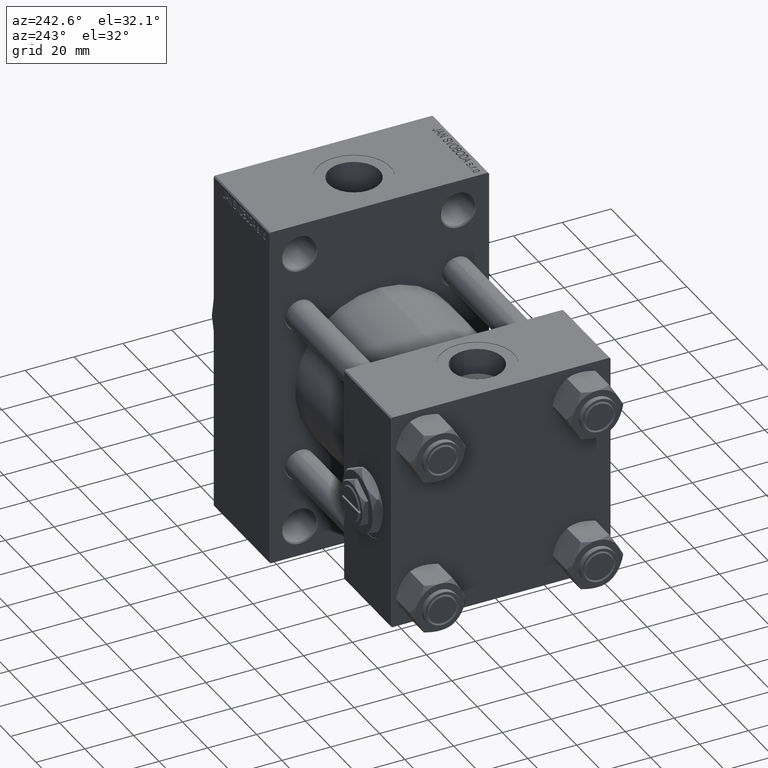
[diagram: clean part render]
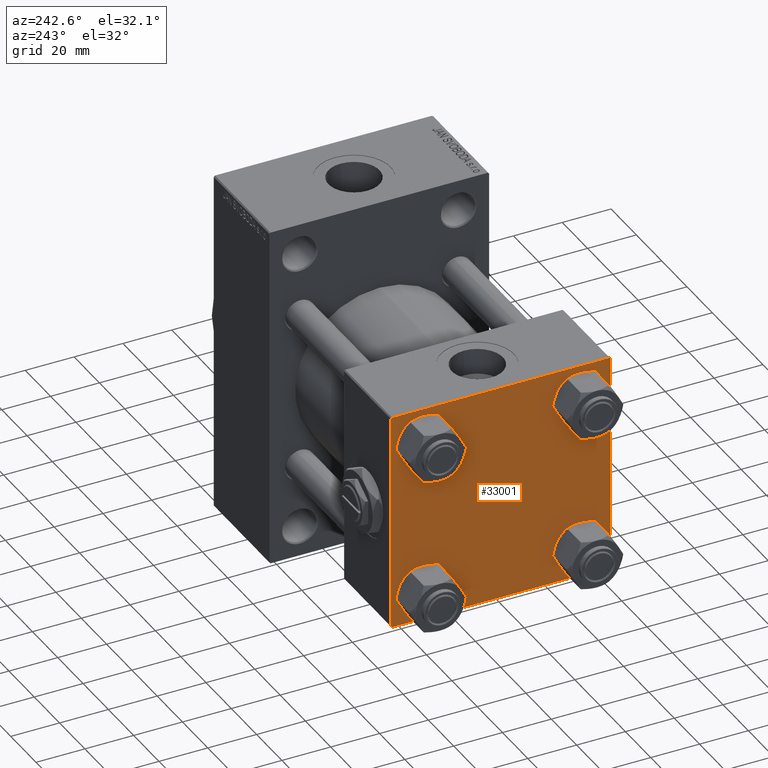
[diagram: same view with one face highlighted and labeled with its STEP entity id]
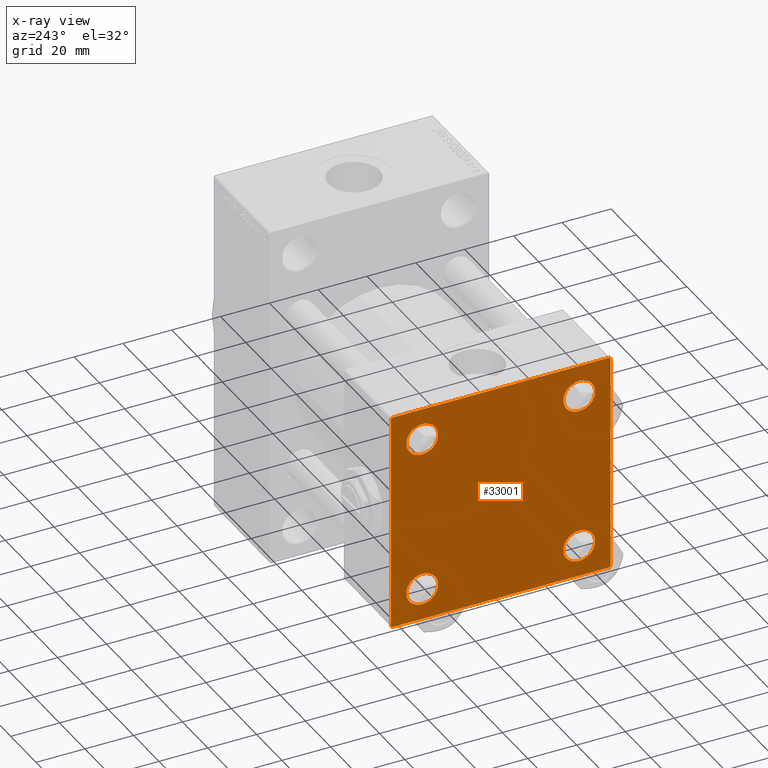
[diagram: x-ray of the same camera — body ghosted, the highlighted face saturated]
A machine part, auxiliary view. The second image highlights one B-rep face of the part: STEP entity #33001.
The next image is the same camera in x-ray: the body ghosted, the highlighted face saturated — about 0% of this face is hidden behind the body in this view.
In plain terms, the highlighted planar face has unit normal (-1, 0, 0).
Its self-contained STEP definition (entity closure, byte-faithful):
#11 = CARTESIAN_POINT ( 'NONE',  ( 0.000000000000000000, 32.14999999999999147, -32.15000000000000568 ) ) ;
#80 = EDGE_CURVE ( 'NONE', #47256, #7699, #8234, .T. ) ;
#155 = CARTESIAN_POINT ( 'NONE',  ( 0.000000000000000000, -32.14999999999997726, 32.15000000000001279 ) ) ;
#191 = EDGE_CURVE ( 'NONE', #15757, #7256, #12706, .T. ) ;
#233 = CARTESIAN_POINT ( 'NONE',  ( 0.000000000000000000, 32.14999999999999147, -25.65000000000002700 ) ) ;
#688 = CARTESIAN_POINT ( 'NONE',  ( 0.000000000000000000, -45.00000000000000711, 44.49999999999997158 ) ) ;
#1546 = CARTESIAN_POINT ( 'NONE',  ( 0.000000000000000000, -32.14999999999997726, 38.65000000000003411 ) ) ;
#2175 = VERTEX_POINT ( 'NONE', #688 ) ;
#2416 = ORIENTED_EDGE ( 'NONE', *, *, #15654, .T. ) ;
#2564 = CARTESIAN_POINT ( 'NONE',  ( 0.000000000000000000, -32.14999999999997726, -32.15000000000001279 ) ) ;
#2588 = EDGE_CURVE ( 'NONE', #41698, #41253, #5916, .T. ) ;
#3427 = DIRECTION ( 'NONE',  ( -0.000000000000000000, 0.7071067811865425767, 0.7071067811865524577 ) ) ;
#3541 = CARTESIAN_POINT ( 'NONE',  ( 0.000000000000000000, 32.14999999999999147, 32.15000000000000568 ) ) ;
#3895 = DIRECTION ( 'NONE',  ( 0.000000000000000000, 0.000000000000000000, 1.000000000000000000 ) ) ;
#4047 = DIRECTION ( 'NONE',  ( 0.000000000000000000, 0.000000000000000000, 1.000000000000000000 ) ) ;
#4240 = EDGE_LOOP ( 'NONE', ( #4431, #46997 ) ) ;
#4390 = DIRECTION ( 'NONE',  ( 1.000000000000000000, -0.000000000000000000, 0.000000000000000000 ) ) ;
#4431 = ORIENTED_EDGE ( 'NONE', *, *, #48320, .T. ) ;
#4630 = PLANE ( 'NONE',  #33924 ) ;
#4871 = DIRECTION ( 'NONE',  ( -1.000000000000000000, 0.000000000000000000, -0.000000000000000000 ) ) ;
#5045 = AXIS2_PLACEMENT_3D ( 'NONE', #31282, #19665, #4047 ) ;
#5916 = CIRCLE ( 'NONE', #35151, 6.499999999999977796 ) ;
#6665 = VECTOR ( 'NONE', #7488, 1000.000000000000114 ) ;
#7256 = VERTEX_POINT ( 'NONE', #23281 ) ;
#7304 = CARTESIAN_POINT ( 'NONE',  ( 0.000000000000000000, 44.99999999999998579, -44.49999999999995737 ) ) ;
#7488 = DIRECTION ( 'NONE',  ( 0.000000000000000000, -0.7071067811865474617, 0.7071067811865474617 ) ) ;
#7699 = VERTEX_POINT ( 'NONE', #11531 ) ;
#8234 = CIRCLE ( 'NONE', #5045, 6.499999999999977796 ) ;
#8442 = CARTESIAN_POINT ( 'NONE',  ( 0.000000000000000000, -32.14999999999997726, -32.15000000000001279 ) ) ;
#8610 = EDGE_CURVE ( 'NONE', #33119, #48596, #29619, .T. ) ;
#9144 = VERTEX_POINT ( 'NONE', #233 ) ;
#9528 = DIRECTION ( 'NONE',  ( 1.000000000000000000, -0.000000000000000000, 0.000000000000000000 ) ) ;
#9663 = CARTESIAN_POINT ( 'NONE',  ( 0.000000000000000000, 44.99999999999998579, -44.99999999999998579 ) ) ;
#10258 = DIRECTION ( 'NONE',  ( 1.000000000000000000, -0.000000000000000000, 0.000000000000000000 ) ) ;
#10473 = ORIENTED_EDGE ( 'NONE', *, *, #2588, .T. ) ;
#10861 = ORIENTED_EDGE ( 'NONE', *, *, #11310, .T. ) ;
#11310 = EDGE_CURVE ( 'NONE', #18508, #9144, #13205, .T. ) ;
#11531 = CARTESIAN_POINT ( 'NONE',  ( 0.000000000000000000, 32.14999999999999147, 38.64999999999999147 ) ) ;
#12438 = CARTESIAN_POINT ( 'NONE',  ( 0.000000000000000000, 44.49999999999998579, 45.00000000000001421 ) ) ;
#12544 = FACE_BOUND ( 'NONE', #41115, .T. ) ;
#12706 = LINE ( 'NONE', #27800, #31172 ) ;
#12865 = VERTEX_POINT ( 'NONE', #24075 ) ;
#13205 = CIRCLE ( 'NONE', #16353, 6.499999999999977796 ) ;
#13289 = CARTESIAN_POINT ( 'NONE',  ( 0.000000000000000000, 44.74999999999999289, 44.74999999999999289 ) ) ;
#13927 = AXIS2_PLACEMENT_3D ( 'NONE', #155, #4390, #3895 ) ;
#14826 = VECTOR ( 'NONE', #37281, 1000.000000000000000 ) ;
#15159 = CARTESIAN_POINT ( 'NONE',  ( 0.000000000000000000, -44.74999999999998579, -44.74999999999998579 ) ) ;
#15424 = ORIENTED_EDGE ( 'NONE', *, *, #48522, .T. ) ;
#15461 = CIRCLE ( 'NONE', #23384, 6.499999999999977796 ) ;
#15470 = LINE ( 'NONE', #37493, #44767 ) ;
#15654 = EDGE_CURVE ( 'NONE', #28174, #12865, #30024, .T. ) ;
#15757 = VERTEX_POINT ( 'NONE', #12438 ) ;
#16353 = AXIS2_PLACEMENT_3D ( 'NONE', #27022, #23798, #26525 ) ;
#16475 = EDGE_CURVE ( 'NONE', #2175, #12865, #20366, .T. ) ;
#16683 = EDGE_CURVE ( 'NONE', #41253, #41698, #39002, .T. ) ;
#16752 = DIRECTION ( 'NONE',  ( 0.000000000000000000, 0.7071067811865474617, -0.7071067811865474617 ) ) ;
#17439 = ORIENTED_EDGE ( 'NONE', *, *, #17777, .T. ) ;
#17670 = DIRECTION ( 'NONE',  ( 0.000000000000000000, 0.000000000000000000, 1.000000000000000000 ) ) ;
#17777 = EDGE_CURVE ( 'NONE', #9144, #18508, #30340, .T. ) ;
#18508 = VERTEX_POINT ( 'NONE', #25001 ) ;
#18650 = DIRECTION ( 'NONE',  ( 0.000000000000000000, 0.000000000000000000, 1.000000000000000000 ) ) ;
#18805 = AXIS2_PLACEMENT_3D ( 'NONE', #26851, #22886, #22640 ) ;
#19037 = CARTESIAN_POINT ( 'NONE',  ( -0.000000000000000000, -44.75000000000029843, 44.74999999999967315 ) ) ;
#19093 = DIRECTION ( 'NONE',  ( 1.000000000000000000, -0.000000000000000000, 0.000000000000000000 ) ) ;
#19443 = ORIENTED_EDGE ( 'NONE', *, *, #80, .T. ) ;
#19619 = VECTOR ( 'NONE', #47519, 1000.000000000000000 ) ;
#19665 = DIRECTION ( 'NONE',  ( 1.000000000000000000, -0.000000000000000000, 0.000000000000000000 ) ) ;
#19740 = DIRECTION ( 'NONE',  ( -0.000000000000000000, 0.000000000000000000, 1.000000000000000000 ) ) ;
#20366 = LINE ( 'NONE', #20602, #48479 ) ;
#20602 = CARTESIAN_POINT ( 'NONE',  ( 0.000000000000000000, -45.00000000000000711, 45.00000000000000000 ) ) ;
#21085 = DIRECTION ( 'NONE',  ( 0.000000000000000000, 7.709882115452476934E-17, -1.000000000000000000 ) ) ;
#22451 = EDGE_CURVE ( 'NONE', #7699, #47256, #15461, .T. ) ;
#22640 = DIRECTION ( 'NONE',  ( 0.000000000000000000, 0.000000000000000000, 1.000000000000000000 ) ) ;
#22886 = DIRECTION ( 'NONE',  ( 1.000000000000000000, -0.000000000000000000, 0.000000000000000000 ) ) ;
#23007 = CARTESIAN_POINT ( 'NONE',  ( 0.000000000000000000, 32.14999999999999147, 25.65000000000002700 ) ) ;
#23178 = VERTEX_POINT ( 'NONE', #27136 ) ;
#23281 = CARTESIAN_POINT ( 'NONE',  ( 0.000000000000000000, -44.49999999999995737, 45.00000000000000000 ) ) ;
#23384 = AXIS2_PLACEMENT_3D ( 'NONE', #3541, #10258, #18650 ) ;
#23798 = DIRECTION ( 'NONE',  ( 1.000000000000000000, -0.000000000000000000, 0.000000000000000000 ) ) ;
#24075 = CARTESIAN_POINT ( 'NONE',  ( 0.000000000000000000, -45.00000000000000000, -44.49999999999995737 ) ) ;
#24514 = CARTESIAN_POINT ( 'NONE',  ( 0.000000000000000000, 44.49999999999998579, -44.99999999999998579 ) ) ;
#25001 = CARTESIAN_POINT ( 'NONE',  ( 0.000000000000000000, 32.14999999999999147, -38.64999999999998437 ) ) ;
#25260 = LINE ( 'NONE', #9663, #19619 ) ;
#26525 = DIRECTION ( 'NONE',  ( 0.000000000000000000, 0.000000000000000000, 1.000000000000000000 ) ) ;
#26644 = CARTESIAN_POINT ( 'NONE',  ( 0.000000000000000000, -32.14999999999997726, -25.65000000000003411 ) ) ;
#26851 = CARTESIAN_POINT ( 'NONE',  ( 0.000000000000000000, -32.14999999999997726, 32.15000000000001279 ) ) ;
#27022 = CARTESIAN_POINT ( 'NONE',  ( 0.000000000000000000, 32.14999999999999147, -32.15000000000000568 ) ) ;
#27136 = CARTESIAN_POINT ( 'NONE',  ( 0.000000000000000000, -32.14999999999997726, 25.64999999999999147 ) ) ;
#27513 = EDGE_CURVE ( 'NONE', #39191, #28174, #25260, .T. ) ;
#27800 = CARTESIAN_POINT ( 'NONE',  ( 0.000000000000000000, 44.99999999999998579, 45.00000000000001421 ) ) ;
#28174 = VERTEX_POINT ( 'NONE', #43871 ) ;
#28447 = ORIENTED_EDGE ( 'NONE', *, *, #27513, .T. ) ;
#29619 = LINE ( 'NONE', #32839, #14826 ) ;
#29973 = DIRECTION ( 'NONE',  ( 1.000000000000000000, -0.000000000000000000, 0.000000000000000000 ) ) ;
#30024 = LINE ( 'NONE', #15159, #6665 ) ;
#30081 = DIRECTION ( 'NONE',  ( -0.000000000000000000, -0.7071067811865474617, -0.7071067811865474617 ) ) ;
#30237 = DIRECTION ( 'NONE',  ( 0.000000000000000000, 0.000000000000000000, 1.000000000000000000 ) ) ;
#30340 = CIRCLE ( 'NONE', #42967, 6.499999999999977796 ) ;
#30384 = EDGE_CURVE ( 'NONE', #2175, #7256, #30429, .T. ) ;
#30429 = LINE ( 'NONE', #19037, #42533 ) ;
#30756 = EDGE_CURVE ( 'NONE', #23178, #47981, #40151, .T. ) ;
#31007 = ORIENTED_EDGE ( 'NONE', *, *, #34153, .T. ) ;
#31038 = CARTESIAN_POINT ( 'NONE',  ( 0.000000000000000000, -32.14999999999997726, -38.64999999999999147 ) ) ;
#31172 = VECTOR ( 'NONE', #42882, 1000.000000000000000 ) ;
#31282 = CARTESIAN_POINT ( 'NONE',  ( 0.000000000000000000, 32.14999999999999147, 32.15000000000000568 ) ) ;
#32839 = CARTESIAN_POINT ( 'NONE',  ( 0.000000000000000000, 44.99999999999998579, 45.00000000000001421 ) ) ;
#33001 = ADVANCED_FACE ( 'NONE', ( #35310, #42490, #41996, #12544, #38780 ), #4630, .T. ) ;
#33119 = VERTEX_POINT ( 'NONE', #48132 ) ;
#33924 = AXIS2_PLACEMENT_3D ( 'NONE', #45449, #4871, #19740 ) ;
#34153 = EDGE_CURVE ( 'NONE', #15757, #33119, #46211, .T. ) ;
#35151 = AXIS2_PLACEMENT_3D ( 'NONE', #2564, #9528, #17670 ) ;
#35310 = FACE_BOUND ( 'NONE', #4240, .T. ) ;
#37281 = DIRECTION ( 'NONE',  ( 0.000000000000000000, 0.000000000000000000, -1.000000000000000000 ) ) ;
#37493 = CARTESIAN_POINT ( 'NONE',  ( 0.000000000000000000, 44.74999999999998579, -44.74999999999998579 ) ) ;
#37651 = EDGE_LOOP ( 'NONE', ( #46824, #10473 ) ) ;
#37972 = EDGE_LOOP ( 'NONE', ( #45759, #15424, #28447, #2416, #48026, #47627, #38768, #31007 ) ) ;
#38633 = DIRECTION ( 'NONE',  ( 0.000000000000000000, 0.000000000000000000, 1.000000000000000000 ) ) ;
#38768 = ORIENTED_EDGE ( 'NONE', *, *, #191, .F. ) ;
#38780 = FACE_OUTER_BOUND ( 'NONE', #37972, .T. ) ;
#39002 = CIRCLE ( 'NONE', #46125, 6.499999999999977796 ) ;
#39191 = VERTEX_POINT ( 'NONE', #24514 ) ;
#40151 = CIRCLE ( 'NONE', #18805, 6.500000000000019540 ) ;
#41042 = EDGE_LOOP ( 'NONE', ( #17439, #10861 ) ) ;
#41115 = EDGE_LOOP ( 'NONE', ( #45039, #19443 ) ) ;
#41253 = VERTEX_POINT ( 'NONE', #26644 ) ;
#41698 = VERTEX_POINT ( 'NONE', #31038 ) ;
#41996 = FACE_BOUND ( 'NONE', #41042, .T. ) ;
#42490 = FACE_BOUND ( 'NONE', #37651, .T. ) ;
#42533 = VECTOR ( 'NONE', #3427, 1000.000000000000114 ) ;
#42668 = VECTOR ( 'NONE', #16752, 1000.000000000000114 ) ;
#42882 = DIRECTION ( 'NONE',  ( 0.000000000000000000, -1.000000000000000000, -1.541976423090495387E-16 ) ) ;
#42967 = AXIS2_PLACEMENT_3D ( 'NONE', #11, #19093, #30237 ) ;
#43871 = CARTESIAN_POINT ( 'NONE',  ( 0.000000000000000000, -44.49999999999995737, -45.00000000000000000 ) ) ;
#43940 = CIRCLE ( 'NONE', #13927, 6.500000000000019540 ) ;
#44767 = VECTOR ( 'NONE', #30081, 1000.000000000000114 ) ;
#45039 = ORIENTED_EDGE ( 'NONE', *, *, #22451, .T. ) ;
#45449 = CARTESIAN_POINT ( 'NONE',  ( 0.000000000000000000, 0.000000000000000000, 0.000000000000000000 ) ) ;
#45759 = ORIENTED_EDGE ( 'NONE', *, *, #8610, .T. ) ;
#46125 = AXIS2_PLACEMENT_3D ( 'NONE', #8442, #29973, #38633 ) ;
#46211 = LINE ( 'NONE', #13289, #42668 ) ;
#46824 = ORIENTED_EDGE ( 'NONE', *, *, #16683, .T. ) ;
#46997 = ORIENTED_EDGE ( 'NONE', *, *, #30756, .T. ) ;
#47256 = VERTEX_POINT ( 'NONE', #23007 ) ;
#47519 = DIRECTION ( 'NONE',  ( 0.000000000000000000, -1.000000000000000000, -1.541976423090495633E-16 ) ) ;
#47627 = ORIENTED_EDGE ( 'NONE', *, *, #30384, .T. ) ;
#47981 = VERTEX_POINT ( 'NONE', #1546 ) ;
#48026 = ORIENTED_EDGE ( 'NONE', *, *, #16475, .F. ) ;
#48132 = CARTESIAN_POINT ( 'NONE',  ( 0.000000000000000000, 44.99999999999998579, 44.50000000000001421 ) ) ;
#48320 = EDGE_CURVE ( 'NONE', #47981, #23178, #43940, .T. ) ;
#48479 = VECTOR ( 'NONE', #21085, 1000.000000000000000 ) ;
#48522 = EDGE_CURVE ( 'NONE', #48596, #39191, #15470, .T. ) ;
#48596 = VERTEX_POINT ( 'NONE', #7304 ) ;